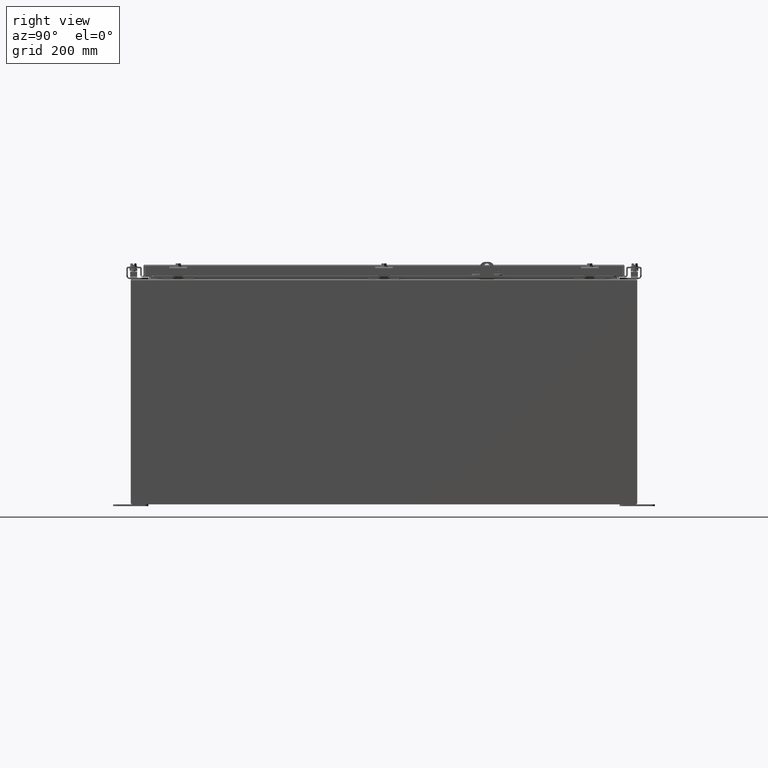
[diagram: clean part render]
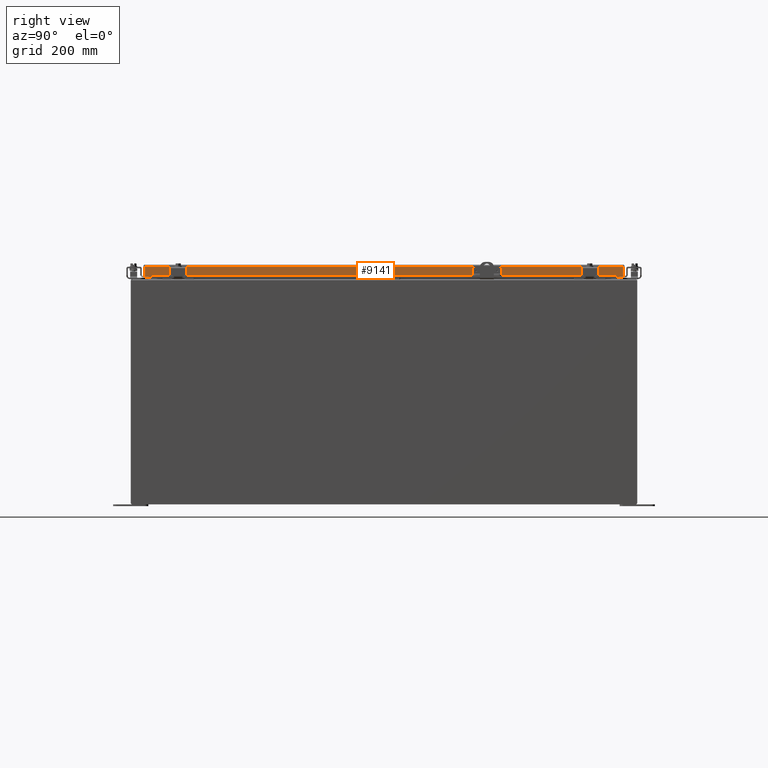
[diagram: same view with one face highlighted and labeled with its STEP entity id]
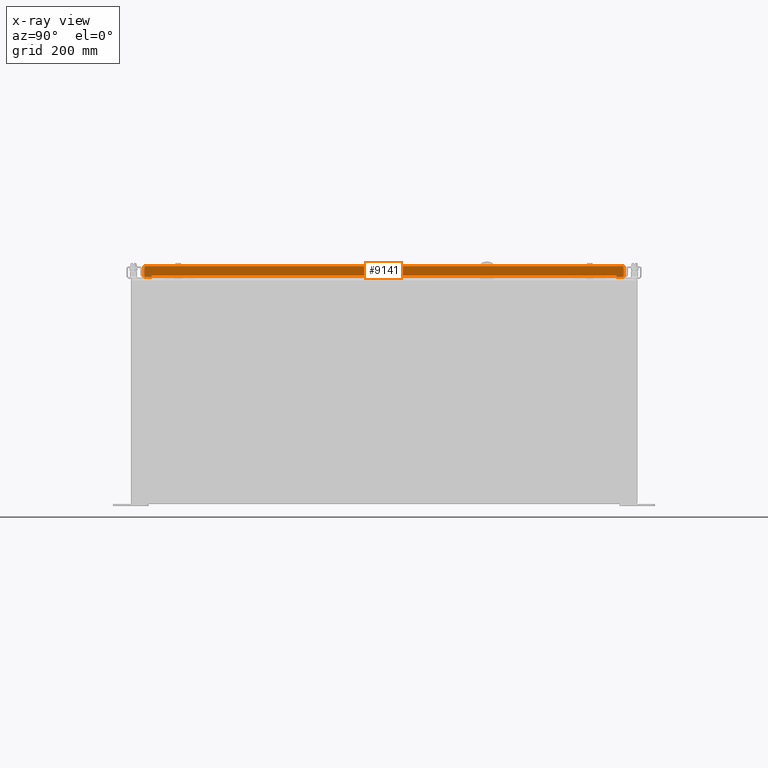
[diagram: x-ray of the same camera — body ghosted, the highlighted face saturated]
A machine part, right view. The second image highlights one B-rep face of the part: STEP entity #9141.
The next image is the same camera in x-ray: the body ghosted, the highlighted face saturated — about 0% of this face is hidden behind the body in this view.
In plain terms, the highlighted planar face has unit normal (-1, 0, -0).
Its self-contained STEP definition (entity closure, byte-faithful):
#8194=CARTESIAN_POINT('',(14.187500000000025,16.508701456543964,0.769749999999996));
#8195=VERTEX_POINT('',#8194);
#8220=CARTESIAN_POINT('',(14.187500000000025,-16.508701456543964,0.769749999999996));
#8221=VERTEX_POINT('',#8220);
#8276=CARTESIAN_POINT('',(14.187500000000025,16.50870145654396,0.769749999999995));
#8277=DIRECTION('',(0.0,-1.0,0.0));
#8278=VECTOR('',#8277,33.017402913087921);
#8279=LINE('',#8276,#8278);
#8280=EDGE_CURVE('',#8195,#8221,#8279,.T.);
#8864=CARTESIAN_POINT('',(14.187500000000025,-16.508701456543964,0.769549999999996));
#8865=VERTEX_POINT('',#8864);
#8872=CARTESIAN_POINT('',(14.187500000000023,-16.508701456543964,0.769749999999996));
#8873=DIRECTION('',(0.0,0.0,-1.0));
#8874=VECTOR('',#8873,0.0002);
#8875=LINE('',#8872,#8874);
#8876=EDGE_CURVE('',#8221,#8865,#8875,.T.);
#8896=CARTESIAN_POINT('',(14.187500000000027,-16.508901456543963,0.874999999999996));
#8897=VERTEX_POINT('',#8896);
#8904=CARTESIAN_POINT('',(14.187500000000025,-16.508901456543963,0.769549999999996));
#8905=VERTEX_POINT('',#8904);
#8906=CARTESIAN_POINT('',(14.187500000000025,-16.508901456543963,0.769549999999996));
#8907=DIRECTION('',(0.0,0.0,1.0));
#8908=VECTOR('',#8907,0.10545);
#8909=LINE('',#8906,#8908);
#8910=EDGE_CURVE('',#8905,#8897,#8909,.T.);
#8933=CARTESIAN_POINT('',(14.187500000000025,-16.50870145654396,0.769549999999996));
#8934=DIRECTION('',(0.0,-1.0,0.0));
#8935=VECTOR('',#8934,0.000200000000003);
#8936=LINE('',#8933,#8935);
#8937=EDGE_CURVE('',#8865,#8905,#8936,.T.);
#9023=CARTESIAN_POINT('',(14.187500000000025,16.508901456543967,0.769549999999996));
#9024=VERTEX_POINT('',#9023);
#9031=CARTESIAN_POINT('',(14.187500000000027,16.508901456543967,0.874999999999996));
#9032=VERTEX_POINT('',#9031);
#9033=CARTESIAN_POINT('',(14.187500000000027,16.508901456543967,0.874999999999996));
#9034=DIRECTION('',(0.0,0.0,-1.0));
#9035=VECTOR('',#9034,0.10545);
#9036=LINE('',#9033,#9035);
#9037=EDGE_CURVE('',#9032,#9024,#9036,.T.);
#9054=CARTESIAN_POINT('',(14.187500000000025,16.508701456543964,0.769549999999996));
#9055=VERTEX_POINT('',#9054);
#9056=CARTESIAN_POINT('',(14.187500000000025,16.508701456543964,0.769549999999996));
#9057=DIRECTION('',(0.0,0.0,1.0));
#9058=VECTOR('',#9057,0.0002);
#9059=LINE('',#9056,#9058);
#9060=EDGE_CURVE('',#9055,#8195,#9059,.T.);
#9079=CARTESIAN_POINT('',(14.187500000000025,16.508901456543967,0.769549999999996));
#9080=DIRECTION('',(0.0,-1.0,0.0));
#9081=VECTOR('',#9080,0.000200000000003);
#9082=LINE('',#9079,#9081);
#9083=EDGE_CURVE('',#9024,#9055,#9082,.T.);
#9089=CARTESIAN_POINT('',(14.187500000000012,-4.589505E-016,0.440238508796664));
#9090=DIRECTION('',(-1.0,0.0,0.0));
#9091=DIRECTION('',(0.0,0.0,1.0));
#9092=AXIS2_PLACEMENT_3D('',#9089,#9090,#9091);
#9093=PLANE('',#9092);
#9094=ORIENTED_EDGE('',*,*,#8910,.T.);
#9095=CARTESIAN_POINT('',(14.187500000000027,-17.008701456543964,0.874999999999996));
#9096=VERTEX_POINT('',#9095);
#9097=CARTESIAN_POINT('',(14.187500000000027,-17.008701456543964,0.874999999999996));
#9098=DIRECTION('',(0.0,1.0,0.0));
#9099=VECTOR('',#9098,0.4998);
#9100=LINE('',#9097,#9099);
#9101=EDGE_CURVE('',#9096,#8897,#9100,.T.);
#9102=ORIENTED_EDGE('',*,*,#9101,.F.);
#9103=CARTESIAN_POINT('',(14.187500000000002,-17.008701456543964,0.105249999999998));
#9104=VERTEX_POINT('',#9103);
#9105=CARTESIAN_POINT('',(14.187500000000002,-17.008701456543964,0.105249999999998));
#9106=DIRECTION('',(0.0,0.0,1.0));
#9107=VECTOR('',#9106,0.769749999999998);
#9108=LINE('',#9105,#9107);
#9109=EDGE_CURVE('',#9104,#9096,#9108,.T.);
#9110=ORIENTED_EDGE('',*,*,#9109,.F.);
#9111=CARTESIAN_POINT('',(14.187500000000002,17.008701456543967,0.105249999999998));
#9112=VERTEX_POINT('',#9111);
#9113=CARTESIAN_POINT('',(14.187500000000002,-17.008701456543964,0.105249999999993));
#9114=DIRECTION('',(0.0,1.0,0.0));
#9115=VECTOR('',#9114,34.017402913087935);
#9116=LINE('',#9113,#9115);
#9117=EDGE_CURVE('',#9104,#9112,#9116,.T.);
#9118=ORIENTED_EDGE('',*,*,#9117,.T.);
#9119=CARTESIAN_POINT('',(14.187500000000027,17.008701456543967,0.874999999999996));
#9120=VERTEX_POINT('',#9119);
#9121=CARTESIAN_POINT('',(14.187500000000028,17.008701456543967,0.874999999999996));
#9122=DIRECTION('',(0.0,0.0,-1.0));
#9123=VECTOR('',#9122,0.769749999999998);
#9124=LINE('',#9121,#9123);
#9125=EDGE_CURVE('',#9120,#9112,#9124,.T.);
#9126=ORIENTED_EDGE('',*,*,#9125,.F.);
#9127=CARTESIAN_POINT('',(14.187500000000027,16.50890145654397,0.874999999999996));
#9128=DIRECTION('',(0.0,1.0,0.0));
#9129=VECTOR('',#9128,0.499799999999993);
#9130=LINE('',#9127,#9129);
#9131=EDGE_CURVE('',#9032,#9120,#9130,.T.);
#9132=ORIENTED_EDGE('',*,*,#9131,.F.);
#9133=ORIENTED_EDGE('',*,*,#9037,.T.);
#9134=ORIENTED_EDGE('',*,*,#9083,.T.);
#9135=ORIENTED_EDGE('',*,*,#9060,.T.);
#9136=ORIENTED_EDGE('',*,*,#8280,.T.);
#9137=ORIENTED_EDGE('',*,*,#8876,.T.);
#9138=ORIENTED_EDGE('',*,*,#8937,.T.);
#9139=EDGE_LOOP('',(#9094,#9102,#9110,#9118,#9126,#9132,#9133,#9134,#9135,#9136,#9137,#9138));
#9140=FACE_OUTER_BOUND('',#9139,.T.);
#9141=ADVANCED_FACE('',(#9140),#9093,.F.);